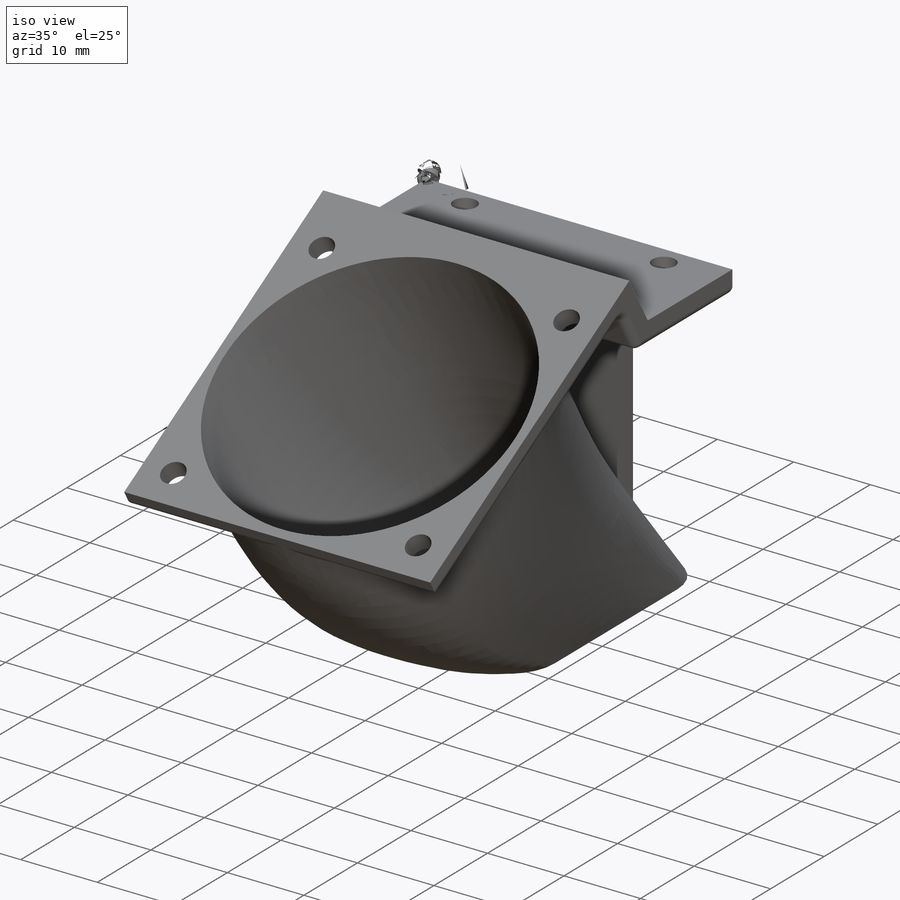
[diagram: iso view]
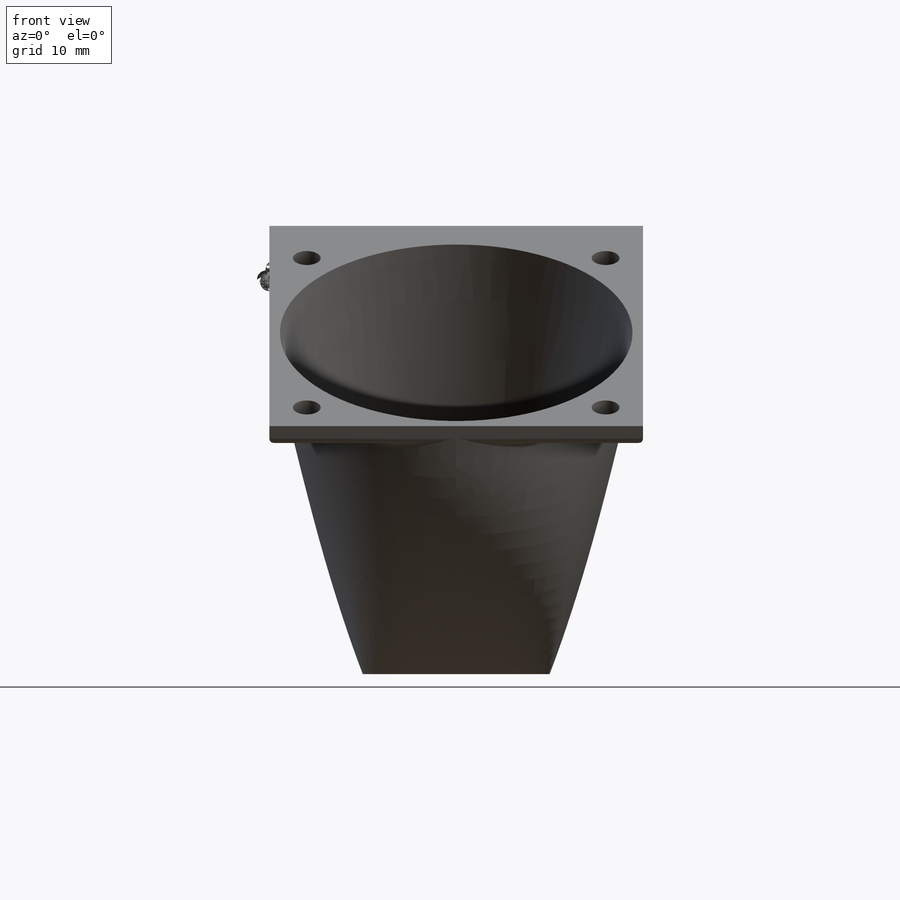
[diagram: front view]
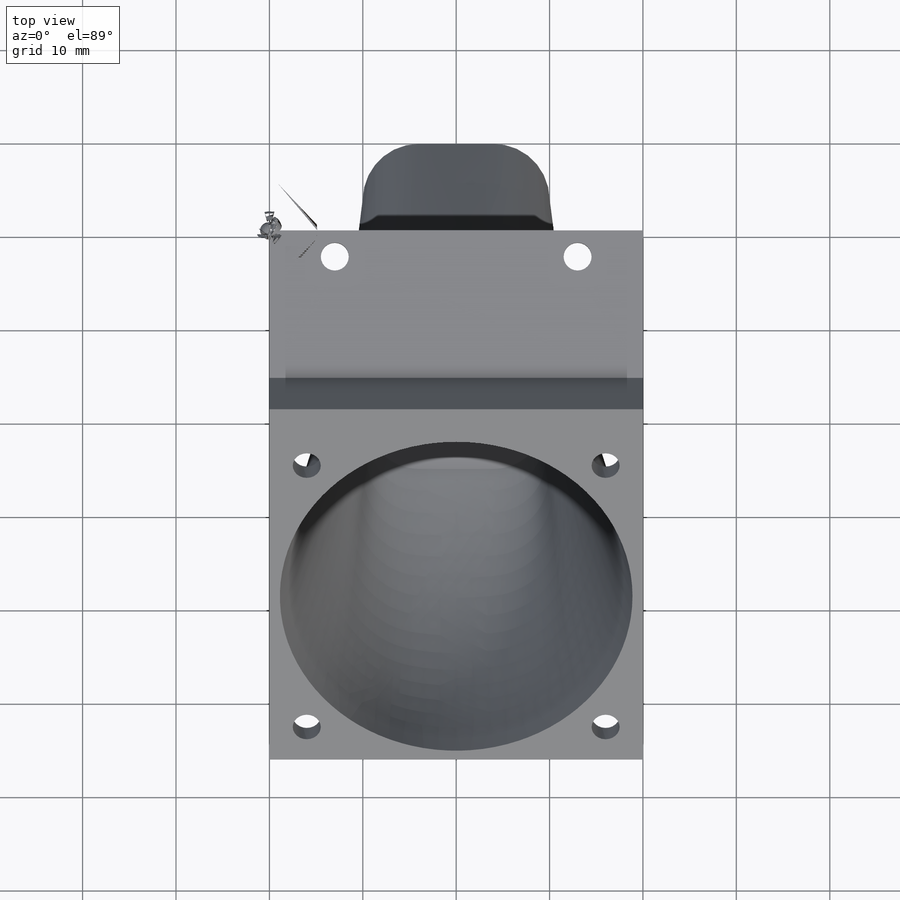
[diagram: top view]
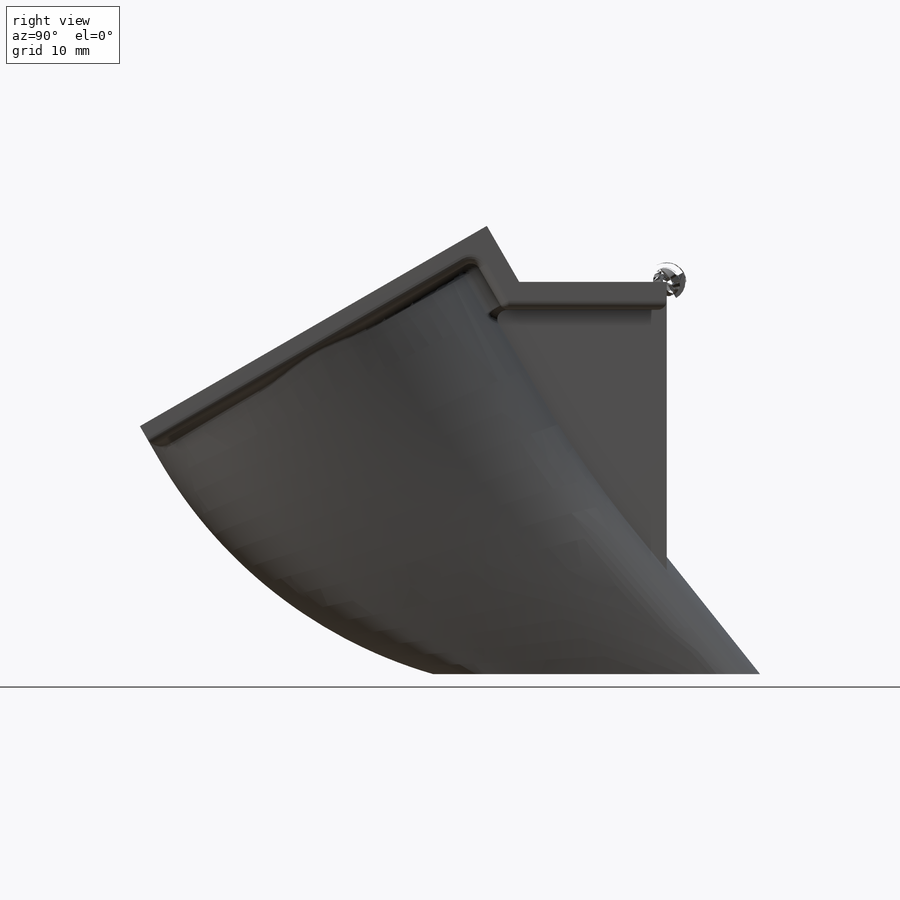
[diagram: right view]
SOLIDWORKS PART (.sldprt)
format: sldprt  version: not decoded by parser v0  size: 903,168 bytes
history: native  units: mm
features: sketch x12, plane x4, cut_extrude x3, fillet x2, boolean_combine x2, material x1, extrude x1, shell x1 (+13 scaffold rows collapsed)
feature tree (39):
  scaffold x13  (default folders/planes/origin — collapsed)
  material  "ABS"
  sketch  "Sketch5"  dims[D1=42.0mm D2=10.0mm]
  sketch  "Sketch2"  dims[c1.D1=2.5mm c1.D2=51.5mm c1.D3=3.0mm c1.D4=3.0mm c1.D5=~7.341413mm c2.D5=150.0deg c2.D6=15.8mm c2.D7=6.0mm c2.D8=44.1mm c2.D9=10.0mm c2.D2=39.9mm]
  extrude  "Boss-Extrude1"  Depth=40mm
  sketch  "Sketch3"  dims[c1.D1=38.0mm c1.D2=3.0mm c1.D3=3.0mm c1.D4=3.0mm c1.D5=38.0mm c2.D3=32.0mm c2.D4=32.0mm c2.D5=20.0mm]
  cut_extrude  "Cut-Extrude1"  [1 undecoded]
  sketch  "Sketch4"  dims[c1.D1=~4.990226mm c1.D2=3.0mm c1.D3=3.0mm c2.D1=2.8mm c2.D2=~27.958061mm c2.D3=26.0mm]
  cut_extrude  "Cut-Extrude2"  [1 undecoded]
  plane  "Plane1"
  plane  "Plane2"
  sketch  "Sketch6"  dims[D1=40.0mm]
  sketch  "Sketch7"  dims[D4=6.0mm D1=35.0mm D2=10.0mm D3=20.0mm]
  sketch  "Sketch8"  dims[c1.D3=60.0mm c1.D1=30.0mm c1.D2=20.0mm c2.D1=10.0mm]
  sketch  "Sketch9"  dims[c1.D1=~39.163964mm c1.D2=60.0mm c1.D3=30.0mm c2.D2=50.0mm c2.D1=20.0mm c3.D2=20.0mm c3.D4=15.0mm c3.D1=25.0mm]
  shell  "Shell2"  Thickness=1.1mm
  sketch  "Sketch13"
  sketch  "Sketch11"  dims[c1.D2=3.0mm c1.D3=3.0mm c1.D1=~18.523129mm c2.D1=~1.299017deg c3.D1=10.0mm]
  cut_extrude  "Cut-Extrude3"  [1 undecoded]
  fillet  "Fillet1"  Radius=1mm
  boolean_combine  "Combine2"
  fillet  "Fillet2"  Radius=1mm
  plane  "Plane3"  Offset=5mm
  plane  "Plane4"  Offset=5mm
  sketch  "Sketch16"  dims[D1=2.0mm]
  sketch  "Sketch18"
  boolean_combine  "Rib10"
decode coverage: 14 of 21 modeling features carry decoded parameters
note: ~ marks probable driven/reference dimensions
note: 3 parameter values undecoded
summary: no parameter record found for 3 features
note: suppression state not decoded; provenance and decode notes live in map.json
